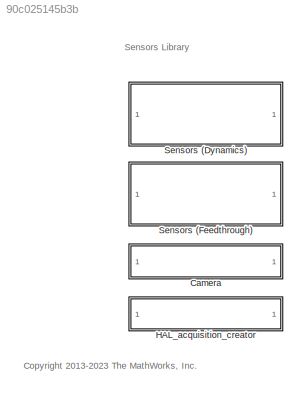
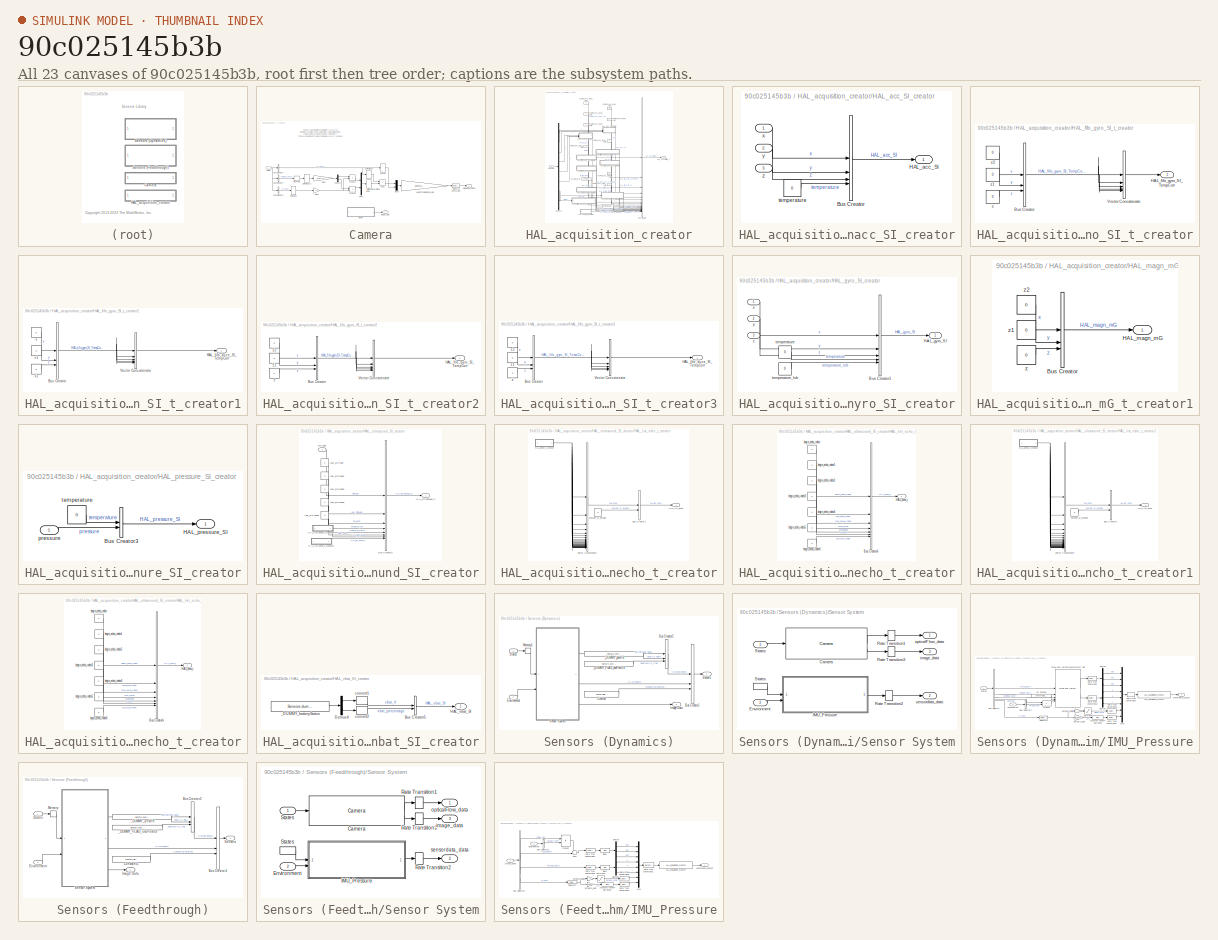
[diagram: thumbnail index - all 23 canvases of the model, root first then tree order]
MODEL slx_90c025145b3b
KIND library
CONFIG AbsTol = auto
CONFIG EnableMultiTasking = on
CONFIG FixedStep = auto
CONFIG MaxStep = auto
CONFIG MinStep = auto
CONFIG RelTol = 1e-3
CONFIG SampleTimeConstraint = Unconstrained
CONFIG SolverName = ode45
CONFIG StartTime = 0.0
CONFIG StopTime = 10.0
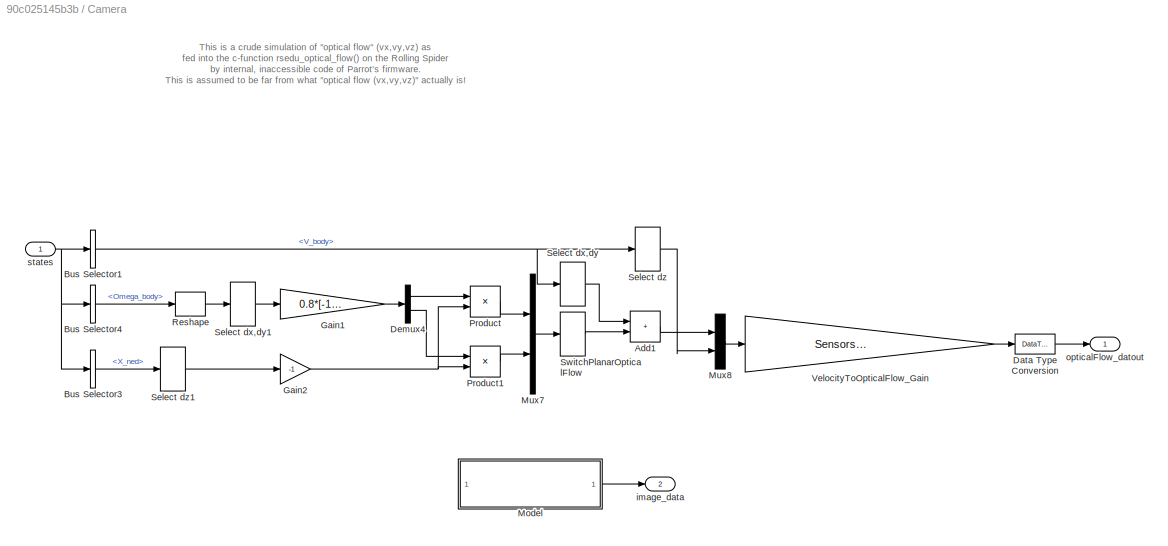
BLOCK [SubSystem] Camera
BLOCK [Sum] Camera/Add1
  IconShape = rectangular
BLOCK [BusSelector] Camera/Bus Selector1
  OutputSignals = V_body
BLOCK [BusSelector] Camera/Bus Selector3
  OutputSignals = X_ned
BLOCK [BusSelector] Camera/Bus Selector4
  OutputSignals = Omega_body
BLOCK [DataTypeConversion] Camera/Data Type Conversion
  OutDataTypeStr = single
  RndMeth = Floor
  SaturateOnIntegerOverflow = off
BLOCK [Demux] Camera/Demux4
  Outputs = 2
BLOCK [Gain] Camera/Gain1
  Gain = 0.8*[-1,1]
BLOCK [Gain] Camera/Gain2
  Gain = -1
BLOCK [ModelReference] Camera/Model
  ModelNameDialog = cameraModel
  ModelReferenceVersion = 9.4
BLOCK [Mux] Camera/Mux7
  DisplayOption = bar
  Inputs = 2
BLOCK [Mux] Camera/Mux8
  DisplayOption = bar
  Inputs = 2
BLOCK [Product] Camera/Product
BLOCK [Product] Camera/Product1
BLOCK [Reshape] Camera/Reshape
BLOCK [Selector] Camera/Select dx,dy
  IndexOptions = Index vector (dialog)
  Indices = [1 2]
  InputPortWidth = 3
  OutputSizes = 1
BLOCK [Selector] Camera/Select dx,dy1
  IndexOptions = Index vector (dialog)
  Indices = [1 2]
  InputPortWidth = 3
  OutputSizes = 1
BLOCK [Selector] Camera/Select dz
  IndexOptions = Index vector (dialog)
  Indices = 3
  InputPortWidth = 3
  OutputSizes = 1
BLOCK [Selector] Camera/Select dz1
  IndexOptions = Index vector (dialog)
  Indices = 3
  InputPortWidth = 3
  OutputSizes = 1
BLOCK [Selector] Camera/SwitchPlanarOpticalFlow
  IndexOptions = Index vector (dialog)
  Indices = [2 1]
  InputPortWidth = 2
  OutputSizes = 1
BLOCK [Gain] Camera/VelocityToOpticalFlow_Gain
  Gain = Sensors.velocityToOpticalFlowGain
BLOCK [Outport] Camera/image_data
  Port = 2
  VectorParamsAs1DForOutWhenUnconnected = off
BLOCK [Outport] Camera/opticalFlow_datout
  VectorParamsAs1DForOutWhenUnconnected = off
BLOCK [Inport] Camera/states
  NameLocation = top
  OutDataTypeStr = Bus: StatesBus
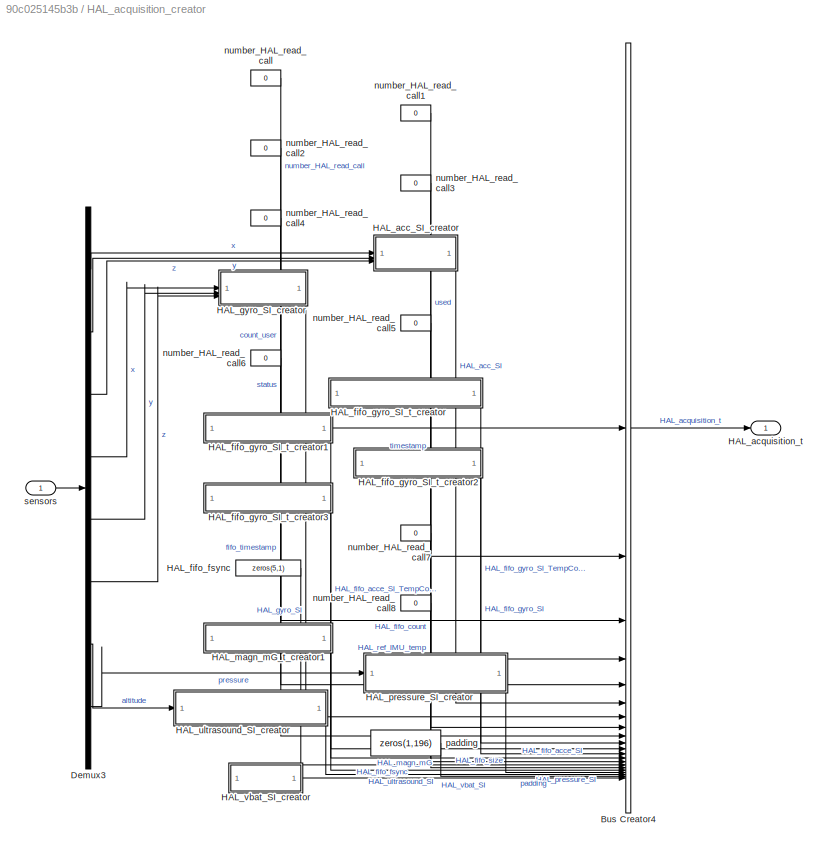
BLOCK [SubSystem] HAL_acquisition_creator
BLOCK [BusCreator] HAL_acquisition_creator/Bus Creator4
  DisplayOption = bar
  InheritFromInputs = off
  Inputs = 21
  NonVirtualBus = on
  OutDataTypeStr = Bus: HAL_acquisition_t
BLOCK [Demux] HAL_acquisition_creator/Demux3
  Outputs = 8
BLOCK [SubSystem] HAL_acquisition_creator/HAL_acc_SI_creator
BLOCK [BusCreator] HAL_acquisition_creator/HAL_acc_SI_creator/Bus Creator
  DisplayOption = bar
  InheritFromInputs = on
  Inputs = 4
  OutDataTypeStr = Bus: HAL_acc_SI_t
BLOCK [Outport] HAL_acquisition_creator/HAL_acc_SI_creator/HAL_acc_SI
  VectorParamsAs1DForOutWhenUnconnected = off
BLOCK [Constant] HAL_acquisition_creator/HAL_acc_SI_creator/temperature
  OutDataTypeStr = single
  Value = 0
BLOCK [Inport] HAL_acquisition_creator/HAL_acc_SI_creator/x
BLOCK [Inport] HAL_acquisition_creator/HAL_acc_SI_creator/y
  Port = 2
BLOCK [Inport] HAL_acquisition_creator/HAL_acc_SI_creator/z
  Port = 3
BLOCK [Outport] HAL_acquisition_creator/HAL_acquisition_t
  OutDataTypeStr = Bus: HAL_acquisition_t
  VectorParamsAs1DForOutWhenUnconnected = off
BLOCK [Constant] HAL_acquisition_creator/HAL_fifo_fsync
  OutDataTypeStr = uint8
  Value = zeros(5,1)
BLOCK [SubSystem] HAL_acquisition_creator/HAL_fifo_gyro_SI_t_creator
BLOCK [BusCreator] HAL_acquisition_creator/HAL_fifo_gyro_SI_t_creator/Bus Creator
  DisplayOption = bar
  InheritFromInputs = off
  Inputs = 3
  NonVirtualBus = on
  OutDataTypeStr = Bus: HAL_fifo_gyro_SI_t
BLOCK [Outport] HAL_acquisition_creator/HAL_fifo_gyro_SI_t_creator/HAL_fifo_gyro_SI_TempCorr
  LockScale = on
  PortDimensions = 5
  VectorParamsAs1DForOutWhenUnconnected = off
BLOCK [Concatenate] HAL_acquisition_creator/HAL_fifo_gyro_SI_t_creator/Vector Concatenate
  NumInputs = 5
BLOCK [Constant] HAL_acquisition_creator/HAL_fifo_gyro_SI_t_creator/z
  OutDataTypeStr = single
  Value = 0
BLOCK [Constant] HAL_acquisition_creator/HAL_fifo_gyro_SI_t_creator/z1
  OutDataTypeStr = single
  Value = 0
BLOCK [Constant] HAL_acquisition_creator/HAL_fifo_gyro_SI_t_creator/z2
  OutDataTypeStr = single
  Value = 0
BLOCK [SubSystem] HAL_acquisition_creator/HAL_fifo_gyro_SI_t_creator1
BLOCK [BusCreator] HAL_acquisition_creator/HAL_fifo_gyro_SI_t_creator1/Bus Creator
  DisplayOption = bar
  InheritFromInputs = off
  Inputs = 3
  NonVirtualBus = on
  OutDataTypeStr = Bus: HAL_fifo_gyro_SI_t
BLOCK [Outport] HAL_acquisition_creator/HAL_fifo_gyro_SI_t_creator1/HAL_fifo_acce_SI_TempCorr
  LockScale = on
  PortDimensions = 5
  VectorParamsAs1DForOutWhenUnconnected = off
BLOCK [Concatenate] HAL_acquisition_creator/HAL_fifo_gyro_SI_t_creator1/Vector Concatenate
  NumInputs = 5
BLOCK [Constant] HAL_acquisition_creator/HAL_fifo_gyro_SI_t_creator1/x
  OutDataTypeStr = single
  Value = 0
BLOCK [Constant] HAL_acquisition_creator/HAL_fifo_gyro_SI_t_creator1/x1
  OutDataTypeStr = single
  Value = 0
BLOCK [Constant] HAL_acquisition_creator/HAL_fifo_gyro_SI_t_creator1/x2
  OutDataTypeStr = single
  Value = 0
BLOCK [SubSystem] HAL_acquisition_creator/HAL_fifo_gyro_SI_t_creator2
BLOCK [BusCreator] HAL_acquisition_creator/HAL_fifo_gyro_SI_t_creator2/Bus Creator
  DisplayOption = bar
  InheritFromInputs = off
  Inputs = 3
  NonVirtualBus = on
  OutDataTypeStr = Bus: HAL_fifo_gyro_SI_t
BLOCK [Outport] HAL_acquisition_creator/HAL_fifo_gyro_SI_t_creator2/HAL_fifo_gyro_SI_TempCorr
  LockScale = on
  PortDimensions = 5
  VectorParamsAs1DForOutWhenUnconnected = off
BLOCK [Concatenate] HAL_acquisition_creator/HAL_fifo_gyro_SI_t_creator2/Vector Concatenate
  NumInputs = 5
BLOCK [Constant] HAL_acquisition_creator/HAL_fifo_gyro_SI_t_creator2/z
  OutDataTypeStr = single
  Value = 0
BLOCK [Constant] HAL_acquisition_creator/HAL_fifo_gyro_SI_t_creator2/z1
  OutDataTypeStr = single
  Value = 0
BLOCK [Constant] HAL_acquisition_creator/HAL_fifo_gyro_SI_t_creator2/z2
  OutDataTypeStr = single
  Value = 0
BLOCK [SubSystem] HAL_acquisition_creator/HAL_fifo_gyro_SI_t_creator3
BLOCK [BusCreator] HAL_acquisition_creator/HAL_fifo_gyro_SI_t_creator3/Bus Creator
  DisplayOption = bar
  InheritFromInputs = off
  Inputs = 3
  NonVirtualBus = on
  OutDataTypeStr = Bus: HAL_fifo_gyro_SI_t
BLOCK [Outport] HAL_acquisition_creator/HAL_fifo_gyro_SI_t_creator3/HAL_fifo_acce_SI_TempCorr
  LockScale = on
  PortDimensions = 5
  VectorParamsAs1DForOutWhenUnconnected = off
BLOCK [Concatenate] HAL_acquisition_creator/HAL_fifo_gyro_SI_t_creator3/Vector Concatenate
  NumInputs = 5
BLOCK [Constant] HAL_acquisition_creator/HAL_fifo_gyro_SI_t_creator3/z
  OutDataTypeStr = single
  Value = 0
BLOCK [Constant] HAL_acquisition_creator/HAL_fifo_gyro_SI_t_creator3/z1
  OutDataTypeStr = single
  Value = 0
BLOCK [Constant] HAL_acquisition_creator/HAL_fifo_gyro_SI_t_creator3/z2
  OutDataTypeStr = single
  Value = 0
BLOCK [SubSystem] HAL_acquisition_creator/HAL_gyro_SI_creator
BLOCK [BusCreator] HAL_acquisition_creator/HAL_gyro_SI_creator/Bus Creator1
  DisplayOption = bar
  InheritFromInputs = on
  Inputs = 5
  OutDataTypeStr = Bus: HAL_gyro_SI_t
BLOCK [Outport] HAL_acquisition_creator/HAL_gyro_SI_creator/HAL_gyro_SI
  VectorParamsAs1DForOutWhenUnconnected = off
BLOCK [Constant] HAL_acquisition_creator/HAL_gyro_SI_creator/temperature
  OutDataTypeStr = single
  Value = 0
BLOCK [Constant] HAL_acquisition_creator/HAL_gyro_SI_creator/temperature_lsb
  OutDataTypeStr = int32
  Value = 0
BLOCK [Inport] HAL_acquisition_creator/HAL_gyro_SI_creator/x
BLOCK [Inport] HAL_acquisition_creator/HAL_gyro_SI_creator/y
  Port = 2
BLOCK [Inport] HAL_acquisition_creator/HAL_gyro_SI_creator/z
  Port = 3
BLOCK [SubSystem] HAL_acquisition_creator/HAL_magn_mG_t_creator1
BLOCK [BusCreator] HAL_acquisition_creator/HAL_magn_mG_t_creator1/Bus Creator
  DisplayOption = bar
  InheritFromInputs = off
  Inputs = 3
  OutDataTypeStr = Bus: HAL_magn_mG_t
BLOCK [Outport] HAL_acquisition_creator/HAL_magn_mG_t_creator1/HAL_magn_mG
  VectorParamsAs1DForOutWhenUnconnected = off
BLOCK [Constant] HAL_acquisition_creator/HAL_magn_mG_t_creator1/z
  OutDataTypeStr = single
  Value = 0
BLOCK [Constant] HAL_acquisition_creator/HAL_magn_mG_t_creator1/z1
  OutDataTypeStr = single
  Value = 0
BLOCK [Constant] HAL_acquisition_creator/HAL_magn_mG_t_creator1/z2
  OutDataTypeStr = single
  Value = 0
BLOCK [SubSystem] HAL_acquisition_creator/HAL_pressure_SI_creator
BLOCK [BusCreator] HAL_acquisition_creator/HAL_pressure_SI_creator/Bus Creator3
  DisplayOption = bar
  InheritFromInputs = on
  Inputs = 2
  OutDataTypeStr = Bus: HAL_pressure_SI_t
BLOCK [Outport] HAL_acquisition_creator/HAL_pressure_SI_creator/HAL_pressure_SI
  VectorParamsAs1DForOutWhenUnconnected = off
BLOCK [Inport] HAL_acquisition_creator/HAL_pressure_SI_creator/pressure
BLOCK [Constant] HAL_acquisition_creator/HAL_pressure_SI_creator/temperature
  NameLocation = top
  OutDataTypeStr = double
  Value = 0
BLOCK [SubSystem] HAL_acquisition_creator/HAL_ultrasound_SI_creator
BLOCK [BusCreator] HAL_acquisition_creator/HAL_ultrasound_SI_creator/Bus Creator2
  DisplayOption = bar
  InheritFromInputs = off
  Inputs = 8
  NonVirtualBus = on
  OutDataTypeStr = Bus: HAL_ultrasound_SI_t
BLOCK [SubSystem] HAL_acquisition_creator/HAL_ultrasound_SI_creator/HAL_list_echo_t_creator
BLOCK [BusCreator] HAL_acquisition_creator/HAL_ultrasound_SI_creator/HAL_list_echo_t_creator/Bus Creator7
  DisplayOption = bar
  InheritFromInputs = on
  Inputs = 2
  NonVirtualBus = on
  OutDataTypeStr = Bus: HAL_list_echo_t
BLOCK [SubSystem] HAL_acquisition_creator/HAL_ultrasound_SI_creator/HAL_list_echo_t_creator/HAL_echo_t_creator
BLOCK [BusCreator] HAL_acquisition_creator/HAL_ultrasound_SI_creator/HAL_list_echo_t_creator/HAL_echo_t_creator/Bus Creator6
  DisplayOption = bar
  InheritFromInputs = on
  Inputs = 7
  NonVirtualBus = on
  OutDataTypeStr = Bus: HAL_echo_t
BLOCK [Outport] HAL_acquisition_creator/HAL_ultrasound_SI_creator/HAL_list_echo_t_creator/HAL_echo_t_creator/HAL_echo_t
  OutDataTypeStr = Bus: HAL_echo_t
  VectorParamsAs1DForOutWhenUnconnected = off
BLOCK [Constant] HAL_acquisition_creator/HAL_ultrasound_SI_creator/HAL_list_echo_t_creator/HAL_echo_t_creator/begin_echo_index
  OutDataTypeStr = uint16
  Value = 0
BLOCK [Constant] HAL_acquisition_creator/HAL_ultrasound_SI_creator/HAL_list_echo_t_creator/HAL_echo_t_creator/begin_echo_index1
  OutDataTypeStr = uint16
  Value = 0
BLOCK [Constant] HAL_acquisition_creator/HAL_ultrasound_SI_creator/HAL_list_echo_t_creator/HAL_echo_t_creator/begin_echo_index2
  OutDataTypeStr = int16
  Value = 0
BLOCK [Constant] HAL_acquisition_creator/HAL_ultrasound_SI_creator/HAL_list_echo_t_creator/HAL_echo_t_creator/begin_echo_index3
  OutDataTypeStr = int32
  Value = 0
BLOCK [Constant] HAL_acquisition_creator/HAL_ultrasound_SI_creator/HAL_list_echo_t_creator/HAL_echo_t_creator/begin_echo_index4
  OutDataTypeStr = uint16
  Value = 0
BLOCK [Constant] HAL_acquisition_creator/HAL_ultrasound_SI_creator/HAL_list_echo_t_creator/HAL_echo_t_creator/begin_echo_index5
  OutDataTypeStr = int16
  Value = 0
BLOCK [Constant] HAL_acquisition_creator/HAL_ultrasound_SI_creator/HAL_list_echo_t_creator/HAL_echo_t_creator/begin_echo_index6
  OutDataTypeStr = uint16
  Value = 0
BLOCK [Outport] HAL_acquisition_creator/HAL_ultrasound_SI_creator/HAL_list_echo_t_creator/HAL_list_echo
  VectorParamsAs1DForOutWhenUnconnected = off
BLOCK [Concatenate] HAL_acquisition_creator/HAL_ultrasound_SI_creator/HAL_list_echo_t_creator/Vector Concatenate
  NumInputs = 30
BLOCK [Constant] HAL_acquisition_creator/HAL_ultrasound_SI_creator/HAL_list_echo_t_creator/number_of_echoes
  OutDataTypeStr = uint8
  Value = 0
BLOCK [SubSystem] HAL_acquisition_creator/HAL_ultrasound_SI_creator/HAL_list_echo_t_creator1
BLOCK [BusCreator] HAL_acquisition_creator/HAL_ultrasound_SI_creator/HAL_list_echo_t_creator1/Bus Creator7
  DisplayOption = bar
  InheritFromInputs = on
  Inputs = 2
  NonVirtualBus = on
  OutDataTypeStr = Bus: HAL_list_echo_t
BLOCK [SubSystem] HAL_acquisition_creator/HAL_ultrasound_SI_creator/HAL_list_echo_t_creator1/HAL_echo_t_creator
BLOCK [BusCreator] HAL_acquisition_creator/HAL_ultrasound_SI_creator/HAL_list_echo_t_creator1/HAL_echo_t_creator/Bus Creator6
  DisplayOption = bar
  InheritFromInputs = on
  Inputs = 7
  NonVirtualBus = on
  OutDataTypeStr = Bus: HAL_echo_t
BLOCK [Outport] HAL_acquisition_creator/HAL_ultrasound_SI_creator/HAL_list_echo_t_creator1/HAL_echo_t_creator/HAL_echo_t
  OutDataTypeStr = Bus: HAL_echo_t
  VectorParamsAs1DForOutWhenUnconnected = off
BLOCK [Constant] HAL_acquisition_creator/HAL_ultrasound_SI_creator/HAL_list_echo_t_creator1/HAL_echo_t_creator/begin_echo_index
  OutDataTypeStr = uint16
  Value = 0
BLOCK [Constant] HAL_acquisition_creator/HAL_ultrasound_SI_creator/HAL_list_echo_t_creator1/HAL_echo_t_creator/begin_echo_index1
  OutDataTypeStr = uint16
  Value = 0
BLOCK [Constant] HAL_acquisition_creator/HAL_ultrasound_SI_creator/HAL_list_echo_t_creator1/HAL_echo_t_creator/begin_echo_index2
  OutDataTypeStr = int16
  Value = 0
BLOCK [Constant] HAL_acquisition_creator/HAL_ultrasound_SI_creator/HAL_list_echo_t_creator1/HAL_echo_t_creator/begin_echo_index3
  OutDataTypeStr = int32
  Value = 0
BLOCK [Constant] HAL_acquisition_creator/HAL_ultrasound_SI_creator/HAL_list_echo_t_creator1/HAL_echo_t_creator/begin_echo_index4
  OutDataTypeStr = uint16
  Value = 0
BLOCK [Constant] HAL_acquisition_creator/HAL_ultrasound_SI_creator/HAL_list_echo_t_creator1/HAL_echo_t_creator/begin_echo_index5
  OutDataTypeStr = int16
  Value = 0
BLOCK [Constant] HAL_acquisition_creator/HAL_ultrasound_SI_creator/HAL_list_echo_t_creator1/HAL_echo_t_creator/begin_echo_index6
  OutDataTypeStr = uint16
  Value = 0
BLOCK [Outport] HAL_acquisition_creator/HAL_ultrasound_SI_creator/HAL_list_echo_t_creator1/HAL_list_echo
  VectorParamsAs1DForOutWhenUnconnected = off
BLOCK [Concatenate] HAL_acquisition_creator/HAL_ultrasound_SI_creator/HAL_list_echo_t_creator1/Vector Concatenate
  NumInputs = 30
BLOCK [Constant] HAL_acquisition_creator/HAL_ultrasound_SI_creator/HAL_list_echo_t_creator1/number_of_echoes
  OutDataTypeStr = uint8
  Value = 0
BLOCK [Outport] HAL_acquisition_creator/HAL_ultrasound_SI_creator/HAL_ultrasound_SI
  VectorParamsAs1DForOutWhenUnconnected = off
BLOCK [Inport] HAL_acquisition_creator/HAL_ultrasound_SI_creator/altitude
BLOCK [Constant] HAL_acquisition_creator/HAL_ultrasound_SI_creator/raw_altitude
  OutDataTypeStr = single
  Value = 0
BLOCK [Constant] HAL_acquisition_creator/HAL_ultrasound_SI_creator/raw_altitude1
  OutDataTypeStr = uint16
  Value = 0
BLOCK [Constant] HAL_acquisition_creator/HAL_ultrasound_SI_creator/raw_altitude2
  OutDataTypeStr = int32
  Value = 0
BLOCK [Constant] HAL_acquisition_creator/HAL_ultrasound_SI_creator/raw_altitude3
  OutDataTypeStr = int32
  Value = 0
BLOCK [Constant] HAL_acquisition_creator/HAL_ultrasound_SI_creator/raw_altitude4
  OutDataTypeStr = uint8
  Value = 0
BLOCK [SubSystem] HAL_acquisition_creator/HAL_vbat_SI_creator
BLOCK [BusCreator] HAL_acquisition_creator/HAL_vbat_SI_creator/Bus Creator5
  DisplayOption = bar
  InheritFromInputs = on
  Inputs = 2
  OutDataTypeStr = Bus: HAL_vbat_SI_t
BLOCK [Demux] HAL_acquisition_creator/HAL_vbat_SI_creator/Demux4
  Outputs = 2
BLOCK [Outport] HAL_acquisition_creator/HAL_vbat_SI_creator/HAL_vbat_SI
  VectorParamsAs1DForOutWhenUnconnected = off
BLOCK [Constant] HAL_acquisition_creator/HAL_vbat_SI_creator/_DUMMY_batteryStatus
  NameLocation = top
  Value = Sensors.dummy.batteryStatus
BLOCK [DataTypeConversion] HAL_acquisition_creator/HAL_vbat_SI_creator/convert1
  OutDataTypeStr = single
  RndMeth = Floor
BLOCK [DataTypeConversion] HAL_acquisition_creator/HAL_vbat_SI_creator/convert2
  OutDataTypeStr = uint32
  RndMeth = Floor
BLOCK [Constant] HAL_acquisition_creator/number_HAL_read_call
  OutDataTypeStr = int32
  Value = 0
BLOCK [Constant] HAL_acquisition_creator/number_HAL_read_call1
  OutDataTypeStr = uint32
  Value = 0
BLOCK [Constant] HAL_acquisition_creator/number_HAL_read_call2
  OutDataTypeStr = uint16
  Value = 0
BLOCK [Constant] HAL_acquisition_creator/number_HAL_read_call3
  OutDataTypeStr = uint8
  Value = 0
BLOCK [Constant] HAL_acquisition_creator/number_HAL_read_call4
  OutDataTypeStr = uint8
  Value = 0
BLOCK [Constant] HAL_acquisition_creator/number_HAL_read_call5
  OutDataTypeStr = uint16
  Value = 0
BLOCK [Constant] HAL_acquisition_creator/number_HAL_read_call6
  OutDataTypeStr = uint32
  Value = 0
BLOCK [Constant] HAL_acquisition_creator/number_HAL_read_call7
  OutDataTypeStr = single
  Value = 0
BLOCK [Constant] HAL_acquisition_creator/number_HAL_read_call8
  OutDataTypeStr = int32
  Value = 0
BLOCK [Constant] HAL_acquisition_creator/padding
  OutDataTypeStr = uint8
  Value = zeros(1,196)
BLOCK [Inport] HAL_acquisition_creator/sensors
BLOCK [SubSystem] Sensors (Dynamics)
  TreatAsAtomicUnit = on
  VariantControl = Variants.Sensors==1
BLOCK [BusCreator] Sensors (Dynamics)/Bus Creator1
  DisplayOption = bar
  InheritFromInputs = on
  Inputs = 3
  NonVirtualBus = on
  OutDataTypeStr = Bus: SensorsBus
BLOCK [BusCreator] Sensors (Dynamics)/Bus Creator2
  DisplayOption = bar
  InheritFromInputs = on
  Inputs = 3
  NonVirtualBus = on
  OutDataTypeStr = Bus: extraSensorData_t
BLOCK [Constant] Sensors (Dynamics)/Constant
  OutDataTypeStr = single
  Value = sensorCalibrationData
BLOCK [Inport] Sensors (Dynamics)/Environment
  OutDataTypeStr = Bus: EnvironmentBus
  Port = 2
BLOCK [Outport] Sensors (Dynamics)/Image Data
  OutDataTypeStr = uint8
  Port = 2
  PortDimensions = [4 9600]
  VectorParamsAs1DForOutWhenUnconnected = off
BLOCK [Memory] Sensors (Dynamics)/Memory1
  InheritSampleTime = on
  InitialCondition = States
BLOCK [SubSystem] Sensors (Dynamics)/Sensor System
BLOCK [Reference] Sensors (Dynamics)/Sensor System/Camera  REF=$bdroot/Camera
  SourceBlock = $bdroot/Camera
BLOCK [Inport] Sensors (Dynamics)/Sensor System/Environment
  Port = 2
BLOCK [SubSystem] Sensors (Dynamics)/Sensor System/IMU_Pressure
BLOCK [Bias] Sensors (Dynamics)/Sensor System/IMU_Pressure/Assumes takeoff was level1
  Bias = Sensors.altToPrsBias
  SaturateOnIntegerOverflow = off
BLOCK [BusSelector] Sensors (Dynamics)/Sensor System/IMU_Pressure/Bus Selector
  OutputSignals = Accel_body,Omega_body,dOmega_body,DCM_be,X_ned
BLOCK [BusSelector] Sensors (Dynamics)/Sensor System/IMU_Pressure/Bus Selector1
  OutputSignals = Gravity_ned
BLOCK [Constant] Sensors (Dynamics)/Sensor System/IMU_Pressure/CG location
  NameLocation = top
  Value = Sensors.IMU.cg
BLOCK [DataTypeConversion] Sensors (Dynamics)/Sensor System/IMU_Pressure/Data Type Conversion
  OutDataTypeStr = single
  RndMeth = Floor
  SaturateOnIntegerOverflow = off
BLOCK [DataTypeConversion] Sensors (Dynamics)/Sensor System/IMU_Pressure/Data Type Conversion1
  OutDataTypeStr = single
  RndMeth = Floor
  SaturateOnIntegerOverflow = off
BLOCK [DataTypeConversion] Sensors (Dynamics)/Sensor System/IMU_Pressure/Data Type Conversion2
  OutDataTypeStr = single
  RndMeth = Floor
  SaturateOnIntegerOverflow = off
BLOCK [DataTypeConversion] Sensors (Dynamics)/Sensor System/IMU_Pressure/Data Type Conversion3
  OutDataTypeStr = single
  RndMeth = Floor
  SaturateOnIntegerOverflow = off
BLOCK [DataTypeConversion] Sensors (Dynamics)/Sensor System/IMU_Pressure/Data Type Conversion4
  OutDataTypeStr = single
  RndMeth = Floor
  SaturateOnIntegerOverflow = off
BLOCK [Demux] Sensors (Dynamics)/Sensor System/IMU_Pressure/Demux
  Outputs = 3
BLOCK [Demux] Sensors (Dynamics)/Sensor System/IMU_Pressure/Demux2
  Outputs = 3
BLOCK [Inport] Sensors (Dynamics)/Sensor System/IMU_Pressure/Environment
  Port = 2
BLOCK [Reference] Sensors (Dynamics)/Sensor System/IMU_Pressure/HAL_acquisition_creator  REF=$bdroot/HAL_acquisition_creator
  SourceBlock = $bdroot/HAL_acquisition_creator
  SourceType = SubSystem
BLOCK [Mux] Sensors (Dynamics)/Sensor System/IMU_Pressure/Mux
  DisplayOption = bar
  Inputs = 8
BLOCK [Product] Sensors (Dynamics)/Sensor System/IMU_Pressure/Product
  Multiplication = Matrix(*)
BLOCK [Saturate] Sensors (Dynamics)/Sensor System/IMU_Pressure/Saturation
  LowerLimit = Sensors.altSensorMin
  OutDataTypeStr = single
  UpperLimit = inf
BLOCK [Selector] Sensors (Dynamics)/Sensor System/IMU_Pressure/Selector2
  IndexOptions = Index vector (dialog)
  Indices = [3]
  InputPortWidth = 3
  OutputSizes = 1
BLOCK [Inport] Sensors (Dynamics)/Sensor System/IMU_Pressure/States
BLOCK [Reference] Sensors (Dynamics)/Sensor System/IMU_Pressure/Three-axis Inertial Measurement Unit  REF=aerolibnav/Three-axis Inertial
Measurement Unit
  NameLocation = top
  SourceBlock = aerolibnav/Three-axis Inertial\nMeasurement Unit
  SourceType = Three-axis Inertial Measurement Unit
BLOCK [Gain] Sensors (Dynamics)/Sensor System/IMU_Pressure/altToprs_gain
  Gain = Sensors.altToPrsGain
  OutDataTypeStr = single
  ParamDataTypeStr = single
BLOCK [Gain] Sensors (Dynamics)/Sensor System/IMU_Pressure/altToprs_gain1
  Gain = -1
  OutDataTypeStr = single
  ParamDataTypeStr = single
BLOCK [Outport] Sensors (Dynamics)/Sensor System/IMU_Pressure/sensordata_datout
  OutDataTypeStr = Bus: HAL_acquisition_t
  VectorParamsAs1DForOutWhenUnconnected = off
BLOCK [RateTransition] Sensors (Dynamics)/Sensor System/Rate Transition1
  OutPortSampleTime = Ts
BLOCK [RateTransition] Sensors (Dynamics)/Sensor System/Rate Transition2
  OutPortSampleTime = Ts
BLOCK [RateTransition] Sensors (Dynamics)/Sensor System/Rate Transition3
  InitialCondition = zeros(4,9600)
  OutPortSampleTime = VTs
BLOCK [Inport] Sensors (Dynamics)/Sensor System/States
BLOCK [InportShadow] Sensors (Dynamics)/Sensor System/States 
BLOCK [Outport] Sensors (Dynamics)/Sensor System/image_data
  Port = 3
  VectorParamsAs1DForOutWhenUnconnected = off
BLOCK [Outport] Sensors (Dynamics)/Sensor System/opticalFlow_data
  VectorParamsAs1DForOutWhenUnconnected = off
BLOCK [Outport] Sensors (Dynamics)/Sensor System/sensordata_data
  OutDataTypeStr = Bus: HAL_acquisition_t
  Port = 2
  VectorParamsAs1DForOutWhenUnconnected = off
BLOCK [Outport] Sensors (Dynamics)/Sensors
  OutDataTypeStr = Bus: SensorsBus
  VectorParamsAs1DForOutWhenUnconnected = off
BLOCK [Inport] Sensors (Dynamics)/States
  OutDataTypeStr = Bus: StatesBus
BLOCK [Constant] Sensors (Dynamics)/_DUMMY_FLAG_usePosVIS
  OutDataTypeStr = single
  SampleTime = Ts
  Value = Sensors.dummy.usePosVISFlag
BLOCK [Constant] Sensors (Dynamics)/_DUMMY_posVIS
  OutDataTypeStr = single
  SampleTime = Ts
  Value = Sensors.dummy.posVISNoVisionAvail
BLOCK [SubSystem] Sensors (Feedthrough)
  TreatAsAtomicUnit = on
BLOCK [BusCreator] Sensors (Feedthrough)/Bus Creator1
  DisplayOption = bar
  InheritFromInputs = on
  Inputs = 3
  NonVirtualBus = on
  OutDataTypeStr = Bus: SensorsBus
BLOCK [BusCreator] Sensors (Feedthrough)/Bus Creator2
  DisplayOption = bar
  InheritFromInputs = on
  Inputs = 3
  NonVirtualBus = on
  OutDataTypeStr = Bus: extraSensorData_t
BLOCK [Constant] Sensors (Feedthrough)/Constant1
  OutDataTypeStr = single
  Value = sensorCalibrationData
BLOCK [Inport] Sensors (Feedthrough)/Environment
  OutDataTypeStr = Bus: EnvironmentBus
  Port = 2
BLOCK [Outport] Sensors (Feedthrough)/Image Data
  OutDataTypeStr = uint8
  Port = 2
  PortDimensions = [4 9600]
  VectorParamsAs1DForOutWhenUnconnected = off
BLOCK [Memory] Sensors (Feedthrough)/Memory
  InheritSampleTime = on
  InitialCondition = States
BLOCK [SubSystem] Sensors (Feedthrough)/Sensor System
BLOCK [Reference] Sensors (Feedthrough)/Sensor System/Camera  REF=$bdroot/Camera
  SourceBlock = $bdroot/Camera
BLOCK [Inport] Sensors (Feedthrough)/Sensor System/Environment
  Port = 2
BLOCK [SubSystem] Sensors (Feedthrough)/Sensor System/IMU_Pressure
BLOCK [Bias] Sensors (Feedthrough)/Sensor System/IMU_Pressure/Assumes takeoff was level1
  Bias = Sensors.altToPrsBias
  SaturateOnIntegerOverflow = off
BLOCK [Bias] Sensors (Feedthrough)/Sensor System/IMU_Pressure/Bias1
  Bias = Sensors.IMU.accBias'
  SaturateOnIntegerOverflow = off
BLOCK [Bias] Sensors (Feedthrough)/Sensor System/IMU_Pressure/Bias2
  Bias = Sensors.IMU.gyroBias'
  SaturateOnIntegerOverflow = off
BLOCK [BusSelector] Sensors (Feedthrough)/Sensor System/IMU_Pressure/Bus Selector1
  OutputSignals = DCM_be,Accel_body,Omega_body,X_ned
BLOCK [BusSelector] Sensors (Feedthrough)/Sensor System/IMU_Pressure/Bus Selector2
  OutputSignals = Gravity_ned
BLOCK [DataTypeConversion] Sensors (Feedthrough)/Sensor System/IMU_Pressure/Data Type Conversion1
  OutDataTypeStr = single
  RndMeth = Floor
  SaturateOnIntegerOverflow = off
BLOCK [DataTypeConversion] Sensors (Feedthrough)/Sensor System/IMU_Pressure/Data Type Conversion2
  OutDataTypeStr = single
  RndMeth = Floor
  SaturateOnIntegerOverflow = off
BLOCK [DataTypeConversion] Sensors (Feedthrough)/Sensor System/IMU_Pressure/Data Type Conversion3
  OutDataTypeStr = single
  RndMeth = Floor
  SaturateOnIntegerOverflow = off
BLOCK [DataTypeConversion] Sensors (Feedthrough)/Sensor System/IMU_Pressure/Data Type Conversion4
  OutDataTypeStr = single
  RndMeth = Floor
  SaturateOnIntegerOverflow = off
BLOCK [DataTypeConversion] Sensors (Feedthrough)/Sensor System/IMU_Pressure/Data Type Conversion5
  OutDataTypeStr = single
  RndMeth = Floor
  SaturateOnIntegerOverflow = off
BLOCK [Demux] Sensors (Feedthrough)/Sensor System/IMU_Pressure/Demux
  Outputs = 3
BLOCK [Demux] Sensors (Feedthrough)/Sensor System/IMU_Pressure/Demux2
  Outputs = 3
BLOCK [Inport] Sensors (Feedthrough)/Sensor System/IMU_Pressure/Environment
  Port = 2
BLOCK [Reference] Sensors (Feedthrough)/Sensor System/IMU_Pressure/HAL_acquisition_creator  REF=$bdroot/HAL_acquisition_creator
  SourceBlock = $bdroot/HAL_acquisition_creator
  SourceType = SubSystem
BLOCK [Mux] Sensors (Feedthrough)/Sensor System/IMU_Pressure/Mux
  DisplayOption = bar
  Inputs = 8
BLOCK [Product] Sensors (Feedthrough)/Sensor System/IMU_Pressure/Product
  Multiplication = Matrix(*)
BLOCK [Saturate] Sensors (Feedthrough)/Sensor System/IMU_Pressure/Saturation
  LowerLimit = Sensors.altSensorMin
  OutDataTypeStr = single
  UpperLimit = inf
BLOCK [Selector] Sensors (Feedthrough)/Sensor System/IMU_Pressure/Selector2
  IndexOptions = Index vector (dialog)
  Indices = [3]
  InputPortWidth = 3
  OutputSizes = 1
BLOCK [Sum] Sensors (Feedthrough)/Sensor System/IMU_Pressure/Sum
  Inputs = -+|
BLOCK [Gain] Sensors (Feedthrough)/Sensor System/IMU_Pressure/altToprs_gain
  Gain = Sensors.altToPrsGain
  OutDataTypeStr = single
  ParamDataTypeStr = single
BLOCK [Gain] Sensors (Feedthrough)/Sensor System/IMU_Pressure/altToprs_gain1
  Gain = -1
  OutDataTypeStr = single
  ParamDataTypeStr = single
BLOCK [Outport] Sensors (Feedthrough)/Sensor System/IMU_Pressure/sensordata_datout
  OutDataTypeStr = Bus: HAL_acquisition_t
  VectorParamsAs1DForOutWhenUnconnected = off
BLOCK [Inport] Sensors (Feedthrough)/Sensor System/IMU_Pressure/states_datin
  OutDataTypeStr = Bus: StatesBus
BLOCK [RateTransition] Sensors (Feedthrough)/Sensor System/Rate Transition1
  OutPortSampleTime = Ts
BLOCK [RateTransition] Sensors (Feedthrough)/Sensor System/Rate Transition2
  OutPortSampleTime = Ts
BLOCK [RateTransition] Sensors (Feedthrough)/Sensor System/Rate Transition3
  InitialCondition = zeros(4,9600)
  OutPortSampleTime = VTs
BLOCK [Inport] Sensors (Feedthrough)/Sensor System/States
BLOCK [InportShadow] Sensors (Feedthrough)/Sensor System/States 
BLOCK [Outport] Sensors (Feedthrough)/Sensor System/image_data
  Port = 3
  VectorParamsAs1DForOutWhenUnconnected = off
BLOCK [Outport] Sensors (Feedthrough)/Sensor System/opticalFlow_data
  VectorParamsAs1DForOutWhenUnconnected = off
BLOCK [Outport] Sensors (Feedthrough)/Sensor System/sensordata_data
  OutDataTypeStr = Bus: HAL_acquisition_t
  Port = 2
  VectorParamsAs1DForOutWhenUnconnected = off
BLOCK [Outport] Sensors (Feedthrough)/Sensors
  OutDataTypeStr = Bus: SensorsBus
  VectorParamsAs1DForOutWhenUnconnected = off
BLOCK [Inport] Sensors (Feedthrough)/States
  OutDataTypeStr = Bus: StatesBus
BLOCK [Constant] Sensors (Feedthrough)/_DUMMY_FLAG_usePosVIS
  OutDataTypeStr = single
  Value = Sensors.dummy.usePosVISFlag
BLOCK [Constant] Sensors (Feedthrough)/_DUMMY_posVIS
  OutDataTypeStr = single
  Value = Sensors.dummy.posVISNoVisionAvail
ANNOTATION (root): <copyright redacted>
ANNOTATION (root): Sensors Library
ANNOTATION Camera: This is a crude simulation of "optical flow" (vx,vy,vz) as fed into the c-function rsedu_optical_flow() on the Rolling Spider by internal, inaccessible code of Parrot's firmware. This is assumed to be far from what "optical flow (vx,vy,vz)" actually is!
LINE HAL_acquisition_creator/Bus Creator4:1 -> HAL_acquisition_creator/HAL_acquisition_t:1
LINE HAL_acquisition_creator/Demux3:1 -> HAL_acquisition_creator/HAL_acc_SI_creator:1
LINE HAL_acquisition_creator/Demux3:2 -> HAL_acquisition_creator/HAL_acc_SI_creator:2
LINE HAL_acquisition_creator/Demux3:3 -> HAL_acquisition_creator/HAL_acc_SI_creator:3
LINE HAL_acquisition_creator/Demux3:4 -> HAL_acquisition_creator/HAL_gyro_SI_creator:1
LINE HAL_acquisition_creator/Demux3:5 -> HAL_acquisition_creator/HAL_gyro_SI_creator:2
LINE HAL_acquisition_creator/Demux3:6 -> HAL_acquisition_creator/HAL_gyro_SI_creator:3
LINE HAL_acquisition_creator/Demux3:7 -> HAL_acquisition_creator/HAL_ultrasound_SI_creator:1
LINE HAL_acquisition_creator/Demux3:8 -> HAL_acquisition_creator/HAL_pressure_SI_creator:1
LINE HAL_acquisition_creator/HAL_acc_SI_creator/Bus Creator:1 -> HAL_acquisition_creator/HAL_acc_SI_creator/HAL_acc_SI:1
LINE HAL_acquisition_creator/HAL_acc_SI_creator/temperature:1 -> HAL_acquisition_creator/HAL_acc_SI_creator/Bus Creator:4
LINE HAL_acquisition_creator/HAL_acc_SI_creator/x:1 -> HAL_acquisition_creator/HAL_acc_SI_creator/Bus Creator:1
LINE HAL_acquisition_creator/HAL_acc_SI_creator/y:1 -> HAL_acquisition_creator/HAL_acc_SI_creator/Bus Creator:2
LINE HAL_acquisition_creator/HAL_acc_SI_creator/z:1 -> HAL_acquisition_creator/HAL_acc_SI_creator/Bus Creator:3
LINE HAL_acquisition_creator/HAL_acc_SI_creator:1 -> HAL_acquisition_creator/Bus Creator4:6
LINE HAL_acquisition_creator/HAL_fifo_fsync:1 -> HAL_acquisition_creator/Bus Creator4:15
NET HAL_acquisition_creator/HAL_fifo_gyro_SI_t_creator/Bus Creator:1 -> HAL_acquisition_creator/HAL_fifo_gyro_SI_t_creator/Vector Concatenate:1, HAL_acquisition_creator/HAL_fifo_gyro_SI_t_creator/Vector Concatenate:2, HAL_acquisition_creator/HAL_fifo_gyro_SI_t_creator/Vector Concatenate:3, HAL_acquisition_creator/HAL_fifo_gyro_SI_t_creator/Vector Concatenate:4, HAL_acquisition_creator/HAL_fifo_gyro_SI_t_creator/Vector Concatenate:5
LINE HAL_acquisition_creator/HAL_fifo_gyro_SI_t_creator/Vector Concatenate:1 -> HAL_acquisition_creator/HAL_fifo_gyro_SI_t_creator/HAL_fifo_gyro_SI_TempCorr:1
LINE HAL_acquisition_creator/HAL_fifo_gyro_SI_t_creator/z1:1 -> HAL_acquisition_creator/HAL_fifo_gyro_SI_t_creator/Bus Creator:2
LINE HAL_acquisition_creator/HAL_fifo_gyro_SI_t_creator/z2:1 -> HAL_acquisition_creator/HAL_fifo_gyro_SI_t_creator/Bus Creator:1
LINE HAL_acquisition_creator/HAL_fifo_gyro_SI_t_creator/z:1 -> HAL_acquisition_creator/HAL_fifo_gyro_SI_t_creator/Bus Creator:3
NET HAL_acquisition_creator/HAL_fifo_gyro_SI_t_creator1/Bus Creator:1 -> HAL_acquisition_creator/HAL_fifo_gyro_SI_t_creator1/Vector Concatenate:1, HAL_acquisition_creator/HAL_fifo_gyro_SI_t_creator1/Vector Concatenate:2, HAL_acquisition_creator/HAL_fifo_gyro_SI_t_creator1/Vector Concatenate:3, HAL_acquisition_creator/HAL_fifo_gyro_SI_t_creator1/Vector Concatenate:4, HAL_acquisition_creator/HAL_fifo_gyro_SI_t_creator1/Vector Concatenate:5
LINE HAL_acquisition_creator/HAL_fifo_gyro_SI_t_creator1/Vector Concatenate:1 -> HAL_acquisition_creator/HAL_fifo_gyro_SI_t_creator1/HAL_fifo_acce_SI_TempCorr:1
LINE HAL_acquisition_creator/HAL_fifo_gyro_SI_t_creator1/x1:1 -> HAL_acquisition_creator/HAL_fifo_gyro_SI_t_creator1/Bus Creator:2
LINE HAL_acquisition_creator/HAL_fifo_gyro_SI_t_creator1/x2:1 -> HAL_acquisition_creator/HAL_fifo_gyro_SI_t_creator1/Bus Creator:3
LINE HAL_acquisition_creator/HAL_fifo_gyro_SI_t_creator1/x:1 -> HAL_acquisition_creator/HAL_fifo_gyro_SI_t_creator1/Bus Creator:1
LINE HAL_acquisition_creator/HAL_fifo_gyro_SI_t_creator1:1 -> HAL_acquisition_creator/Bus Creator4:11
NET HAL_acquisition_creator/HAL_fifo_gyro_SI_t_creator2/Bus Creator:1 -> HAL_acquisition_creator/HAL_fifo_gyro_SI_t_creator2/Vector Concatenate:1, HAL_acquisition_creator/HAL_fifo_gyro_SI_t_creator2/Vector Concatenate:2, HAL_acquisition_creator/HAL_fifo_gyro_SI_t_creator2/Vector Concatenate:3, HAL_acquisition_creator/HAL_fifo_gyro_SI_t_creator2/Vector Concatenate:4, HAL_acquisition_creator/HAL_fifo_gyro_SI_t_creator2/Vector Concatenate:5
LINE HAL_acquisition_creator/HAL_fifo_gyro_SI_t_creator2/Vector Concatenate:1 -> HAL_acquisition_creator/HAL_fifo_gyro_SI_t_creator2/HAL_fifo_gyro_SI_TempCorr:1
LINE HAL_acquisition_creator/HAL_fifo_gyro_SI_t_creator2/z1:1 -> HAL_acquisition_creator/HAL_fifo_gyro_SI_t_creator2/Bus Creator:2
LINE HAL_acquisition_creator/HAL_fifo_gyro_SI_t_creator2/z2:1 -> HAL_acquisition_creator/HAL_fifo_gyro_SI_t_creator2/Bus Creator:1
LINE HAL_acquisition_creator/HAL_fifo_gyro_SI_t_creator2/z:1 -> HAL_acquisition_creator/HAL_fifo_gyro_SI_t_creator2/Bus Creator:3
LINE HAL_acquisition_creator/HAL_fifo_gyro_SI_t_creator2:1 -> HAL_acquisition_creator/Bus Creator4:12
NET HAL_acquisition_creator/HAL_fifo_gyro_SI_t_creator3/Bus Creator:1 -> HAL_acquisition_creator/HAL_fifo_gyro_SI_t_creator3/Vector Concatenate:1, HAL_acquisition_creator/HAL_fifo_gyro_SI_t_creator3/Vector Concatenate:2, HAL_acquisition_creator/HAL_fifo_gyro_SI_t_creator3/Vector Concatenate:3, HAL_acquisition_creator/HAL_fifo_gyro_SI_t_creator3/Vector Concatenate:4, HAL_acquisition_creator/HAL_fifo_gyro_SI_t_creator3/Vector Concatenate:5
LINE HAL_acquisition_creator/HAL_fifo_gyro_SI_t_creator3/Vector Concatenate:1 -> HAL_acquisition_creator/HAL_fifo_gyro_SI_t_creator3/HAL_fifo_acce_SI_TempCorr:1
LINE HAL_acquisition_creator/HAL_fifo_gyro_SI_t_creator3/z1:1 -> HAL_acquisition_creator/HAL_fifo_gyro_SI_t_creator3/Bus Creator:2
LINE HAL_acquisition_creator/HAL_fifo_gyro_SI_t_creator3/z2:1 -> HAL_acquisition_creator/HAL_fifo_gyro_SI_t_creator3/Bus Creator:1
LINE HAL_acquisition_creator/HAL_fifo_gyro_SI_t_creator3/z:1 -> HAL_acquisition_creator/HAL_fifo_gyro_SI_t_creator3/Bus Creator:3
LINE HAL_acquisition_creator/HAL_fifo_gyro_SI_t_creator3:1 -> HAL_acquisition_creator/Bus Creator4:13
LINE HAL_acquisition_creator/HAL_fifo_gyro_SI_t_creator:1 -> HAL_acquisition_creator/Bus Creator4:10
LINE HAL_acquisition_creator/HAL_gyro_SI_creator/Bus Creator1:1 -> HAL_acquisition_creator/HAL_gyro_SI_creator/HAL_gyro_SI:1
LINE HAL_acquisition_creator/HAL_gyro_SI_creator/temperature:1 -> HAL_acquisition_creator/HAL_gyro_SI_creator/Bus Creator1:4
LINE HAL_acquisition_creator/HAL_gyro_SI_creator/temperature_lsb:1 -> HAL_acquisition_creator/HAL_gyro_SI_creator/Bus Creator1:5
LINE HAL_acquisition_creator/HAL_gyro_SI_creator/x:1 -> HAL_acquisition_creator/HAL_gyro_SI_creator/Bus Creator1:1
LINE HAL_acquisition_creator/HAL_gyro_SI_creator/y:1 -> HAL_acquisition_creator/HAL_gyro_SI_creator/Bus Creator1:2
LINE HAL_acquisition_creator/HAL_gyro_SI_creator/z:1 -> HAL_acquisition_creator/HAL_gyro_SI_creator/Bus Creator1:3
LINE HAL_acquisition_creator/HAL_gyro_SI_creator:1 -> HAL_acquisition_creator/Bus Creator4:7
LINE HAL_acquisition_creator/HAL_magn_mG_t_creator1/Bus Creator:1 -> HAL_acquisition_creator/HAL_magn_mG_t_creator1/HAL_magn_mG:1
LINE HAL_acquisition_creator/HAL_magn_mG_t_creator1/z1:1 -> HAL_acquisition_creator/HAL_magn_mG_t_creator1/Bus Creator:2
LINE HAL_acquisition_creator/HAL_magn_mG_t_creator1/z2:1 -> HAL_acquisition_creator/HAL_magn_mG_t_creator1/Bus Creator:1
LINE HAL_acquisition_creator/HAL_magn_mG_t_creator1/z:1 -> HAL_acquisition_creator/HAL_magn_mG_t_creator1/Bus Creator:3
LINE HAL_acquisition_creator/HAL_magn_mG_t_creator1:1 -> HAL_acquisition_creator/Bus Creator4:17
LINE HAL_acquisition_creator/HAL_pressure_SI_creator/Bus Creator3:1 -> HAL_acquisition_creator/HAL_pressure_SI_creator/HAL_pressure_SI:1
LINE HAL_acquisition_creator/HAL_pressure_SI_creator/pressure:1 -> HAL_acquisition_creator/HAL_pressure_SI_creator/Bus Creator3:2
LINE HAL_acquisition_creator/HAL_pressure_SI_creator/temperature:1 -> HAL_acquisition_creator/HAL_pressure_SI_creator/Bus Creator3:1
LINE HAL_acquisition_creator/HAL_pressure_SI_creator:1 -> HAL_acquisition_creator/Bus Creator4:18
LINE HAL_acquisition_creator/HAL_ultrasound_SI_creator/Bus Creator2:1 -> HAL_acquisition_creator/HAL_ultrasound_SI_creator/HAL_ultrasound_SI:1
LINE HAL_acquisition_creator/HAL_ultrasound_SI_creator/HAL_list_echo_t_creator/Bus Creator7:1 -> HAL_acquisition_creator/HAL_ultrasound_SI_creator/HAL_list_echo_t_creator/HAL_list_echo:1
LINE HAL_acquisition_creator/HAL_ultrasound_SI_creator/HAL_list_echo_t_creator/HAL_echo_t_creator/Bus Creator6:1 -> HAL_acquisition_creator/HAL_ultrasound_SI_creator/HAL_list_echo_t_creator/HAL_echo_t_creator/HAL_echo_t:1
LINE HAL_acquisition_creator/HAL_ultrasound_SI_creator/HAL_list_echo_t_creator/HAL_echo_t_creator/begin_echo_index1:1 -> HAL_acquisition_creator/HAL_ultrasound_SI_creator/HAL_list_echo_t_creator/HAL_echo_t_creator/Bus Creator6:2
LINE HAL_acquisition_creator/HAL_ultrasound_SI_creator/HAL_list_echo_t_creator/HAL_echo_t_creator/begin_echo_index2:1 -> HAL_acquisition_creator/HAL_ultrasound_SI_creator/HAL_list_echo_t_creator/HAL_echo_t_creator/Bus Creator6:3
LINE HAL_acquisition_creator/HAL_ultrasound_SI_creator/HAL_list_echo_t_creator/HAL_echo_t_creator/begin_echo_index3:1 -> HAL_acquisition_creator/HAL_ultrasound_SI_creator/HAL_list_echo_t_creator/HAL_echo_t_creator/Bus Creator6:4
LINE HAL_acquisition_creator/HAL_ultrasound_SI_creator/HAL_list_echo_t_creator/HAL_echo_t_creator/begin_echo_index4:1 -> HAL_acquisition_creator/HAL_ultrasound_SI_creator/HAL_list_echo_t_creator/HAL_echo_t_creator/Bus Creator6:5
LINE HAL_acquisition_creator/HAL_ultrasound_SI_creator/HAL_list_echo_t_creator/HAL_echo_t_creator/begin_echo_index5:1 -> HAL_acquisition_creator/HAL_ultrasound_SI_creator/HAL_list_echo_t_creator/HAL_echo_t_creator/Bus Creator6:6
LINE HAL_acquisition_creator/HAL_ultrasound_SI_creator/HAL_list_echo_t_creator/HAL_echo_t_creator/begin_echo_index6:1 -> HAL_acquisition_creator/HAL_ultrasound_SI_creator/HAL_list_echo_t_creator/HAL_echo_t_creator/Bus Creator6:7
LINE HAL_acquisition_creator/HAL_ultrasound_SI_creator/HAL_list_echo_t_creator/HAL_echo_t_creator/begin_echo_index:1 -> HAL_acquisition_creator/HAL_ultrasound_SI_creator/HAL_list_echo_t_creator/HAL_echo_t_creator/Bus Creator6:1
NET HAL_acquisition_creator/HAL_ultrasound_SI_creator/HAL_list_echo_t_creator/HAL_echo_t_creator:1 -> HAL_acquisition_creator/HAL_ultrasound_SI_creator/HAL_list_echo_t_creator/Vector Concatenate:1, HAL_acquisition_creator/HAL_ultrasound_SI_creator/HAL_list_echo_t_creator/Vector Concatenate:10, HAL_acquisition_creator/HAL_ultrasound_SI_creator/HAL_list_echo_t_creator/Vector Concatenate:11, HAL_acquisition_creator/HAL_ultrasound_SI_creator/HAL_list_echo_t_creator/Vector Concatenate:12, HAL_acquisition_creator/HAL_ultrasound_SI_creator/HAL_list_echo_t_creator/Vector Concatenate:13, HAL_acquisition_creator/HAL_ultrasound_SI_creator/HAL_list_echo_t_creator/Vector Concatenate:14, HAL_acquisition_creator/HAL_ultrasound_SI_creator/HAL_list_echo_t_creator/Vector Concatenate:15, HAL_acquisition_creator/HAL_ultrasound_SI_creator/HAL_list_echo_t_creator/Vector Concatenate:16, HAL_acquisition_creator/HAL_ultrasound_SI_creator/HAL_list_echo_t_creator/Vector Concatenate:17, HAL_acquisition_creator/HAL_ultrasound_SI_creator/HAL_list_echo_t_creator/Vector Concatenate:18, HAL_acquisition_creator/HAL_ultrasound_SI_creator/HAL_list_echo_t_creator/Vector Concatenate:19, HAL_acquisition_creator/HAL_ultrasound_SI_creator/HAL_list_echo_t_creator/Vector Concatenate:2, HAL_acquisition_creator/HAL_ultrasound_SI_creator/HAL_list_echo_t_creator/Vector Concatenate:20, HAL_acquisition_creator/HAL_ultrasound_SI_creator/HAL_list_echo_t_creator/Vector Concatenate:21, HAL_acquisition_creator/HAL_ultrasound_SI_creator/HAL_list_echo_t_creator/Vector Concatenate:22, HAL_acquisition_creator/HAL_ultrasound_SI_creator/HAL_list_echo_t_creator/Vector Concatenate:23, HAL_acquisition_creator/HAL_ultrasound_SI_creator/HAL_list_echo_t_creator/Vector Concatenate:24, HAL_acquisition_creator/HAL_ultrasound_SI_creator/HAL_list_echo_t_creator/Vector Concatenate:25, HAL_acquisition_creator/HAL_ultrasound_SI_creator/HAL_list_echo_t_creator/Vector Concatenate:26, HAL_acquisition_creator/HAL_ultrasound_SI_creator/HAL_list_echo_t_creator/Vector Concatenate:27, HAL_acquisition_creator/HAL_ultrasound_SI_creator/HAL_list_echo_t_creator/Vector Concatenate:28, HAL_acquisition_creator/HAL_ultrasound_SI_creator/HAL_list_echo_t_creator/Vector Concatenate:29, HAL_acquisition_creator/HAL_ultrasound_SI_creator/HAL_list_echo_t_creator/Vector Concatenate:3, HAL_acquisition_creator/HAL_ultrasound_SI_creator/HAL_list_echo_t_creator/Vector Concatenate:30, HAL_acquisition_creator/HAL_ultrasound_SI_creator/HAL_list_echo_t_creator/Vector Concatenate:4, HAL_acquisition_creator/HAL_ultrasound_SI_creator/HAL_list_echo_t_creator/Vector Concatenate:5, HAL_acquisition_creator/HAL_ultrasound_SI_creator/HAL_list_echo_t_creator/Vector Concatenate:6, HAL_acquisition_creator/HAL_ultrasound_SI_creator/HAL_list_echo_t_creator/Vector Concatenate:7, HAL_acquisition_creator/HAL_ultrasound_SI_creator/HAL_list_echo_t_creator/Vector Concatenate:8, HAL_acquisition_creator/HAL_ultrasound_SI_creator/HAL_list_echo_t_creator/Vector Concatenate:9
LINE HAL_acquisition_creator/HAL_ultrasound_SI_creator/HAL_list_echo_t_creator/Vector Concatenate:1 -> HAL_acquisition_creator/HAL_ultrasound_SI_creator/HAL_list_echo_t_creator/Bus Creator7:1
LINE HAL_acquisition_creator/HAL_ultrasound_SI_creator/HAL_list_echo_t_creator/number_of_echoes:1 -> HAL_acquisition_creator/HAL_ultrasound_SI_creator/HAL_list_echo_t_creator/Bus Creator7:2
LINE HAL_acquisition_creator/HAL_ultrasound_SI_creator/HAL_list_echo_t_creator1/Bus Creator7:1 -> HAL_acquisition_creator/HAL_ultrasound_SI_creator/HAL_list_echo_t_creator1/HAL_list_echo:1
LINE HAL_acquisition_creator/HAL_ultrasound_SI_creator/HAL_list_echo_t_creator1/HAL_echo_t_creator/Bus Creator6:1 -> HAL_acquisition_creator/HAL_ultrasound_SI_creator/HAL_list_echo_t_creator1/HAL_echo_t_creator/HAL_echo_t:1
LINE HAL_acquisition_creator/HAL_ultrasound_SI_creator/HAL_list_echo_t_creator1/HAL_echo_t_creator/begin_echo_index1:1 -> HAL_acquisition_creator/HAL_ultrasound_SI_creator/HAL_list_echo_t_creator1/HAL_echo_t_creator/Bus Creator6:2
LINE HAL_acquisition_creator/HAL_ultrasound_SI_creator/HAL_list_echo_t_creator1/HAL_echo_t_creator/begin_echo_index2:1 -> HAL_acquisition_creator/HAL_ultrasound_SI_creator/HAL_list_echo_t_creator1/HAL_echo_t_creator/Bus Creator6:3
LINE HAL_acquisition_creator/HAL_ultrasound_SI_creator/HAL_list_echo_t_creator1/HAL_echo_t_creator/begin_echo_index3:1 -> HAL_acquisition_creator/HAL_ultrasound_SI_creator/HAL_list_echo_t_creator1/HAL_echo_t_creator/Bus Creator6:4
LINE HAL_acquisition_creator/HAL_ultrasound_SI_creator/HAL_list_echo_t_creator1/HAL_echo_t_creator/begin_echo_index4:1 -> HAL_acquisition_creator/HAL_ultrasound_SI_creator/HAL_list_echo_t_creator1/HAL_echo_t_creator/Bus Creator6:5
LINE HAL_acquisition_creator/HAL_ultrasound_SI_creator/HAL_list_echo_t_creator1/HAL_echo_t_creator/begin_echo_index5:1 -> HAL_acquisition_creator/HAL_ultrasound_SI_creator/HAL_list_echo_t_creator1/HAL_echo_t_creator/Bus Creator6:6
LINE HAL_acquisition_creator/HAL_ultrasound_SI_creator/HAL_list_echo_t_creator1/HAL_echo_t_creator/begin_echo_index6:1 -> HAL_acquisition_creator/HAL_ultrasound_SI_creator/HAL_list_echo_t_creator1/HAL_echo_t_creator/Bus Creator6:7
LINE HAL_acquisition_creator/HAL_ultrasound_SI_creator/HAL_list_echo_t_creator1/HAL_echo_t_creator/begin_echo_index:1 -> HAL_acquisition_creator/HAL_ultrasound_SI_creator/HAL_list_echo_t_creator1/HAL_echo_t_creator/Bus Creator6:1
NET HAL_acquisition_creator/HAL_ultrasound_SI_creator/HAL_list_echo_t_creator1/HAL_echo_t_creator:1 -> HAL_acquisition_creator/HAL_ultrasound_SI_creator/HAL_list_echo_t_creator1/Vector Concatenate:1, HAL_acquisition_creator/HAL_ultrasound_SI_creator/HAL_list_echo_t_creator1/Vector Concatenate:10, HAL_acquisition_creator/HAL_ultrasound_SI_creator/HAL_list_echo_t_creator1/Vector Concatenate:11, HAL_acquisition_creator/HAL_ultrasound_SI_creator/HAL_list_echo_t_creator1/Vector Concatenate:12, HAL_acquisition_creator/HAL_ultrasound_SI_creator/HAL_list_echo_t_creator1/Vector Concatenate:13, HAL_acquisition_creator/HAL_ultrasound_SI_creator/HAL_list_echo_t_creator1/Vector Concatenate:14, HAL_acquisition_creator/HAL_ultrasound_SI_creator/HAL_list_echo_t_creator1/Vector Concatenate:15, HAL_acquisition_creator/HAL_ultrasound_SI_creator/HAL_list_echo_t_creator1/Vector Concatenate:16, HAL_acquisition_creator/HAL_ultrasound_SI_creator/HAL_list_echo_t_creator1/Vector Concatenate:17, HAL_acquisition_creator/HAL_ultrasound_SI_creator/HAL_list_echo_t_creator1/Vector Concatenate:18, HAL_acquisition_creator/HAL_ultrasound_SI_creator/HAL_list_echo_t_creator1/Vector Concatenate:19, HAL_acquisition_creator/HAL_ultrasound_SI_creator/HAL_list_echo_t_creator1/Vector Concatenate:2, HAL_acquisition_creator/HAL_ultrasound_SI_creator/HAL_list_echo_t_creator1/Vector Concatenate:20, HAL_acquisition_creator/HAL_ultrasound_SI_creator/HAL_list_echo_t_creator1/Vector Concatenate:21, HAL_acquisition_creator/HAL_ultrasound_SI_creator/HAL_list_echo_t_creator1/Vector Concatenate:22, HAL_acquisition_creator/HAL_ultrasound_SI_creator/HAL_list_echo_t_creator1/Vector Concatenate:23, HAL_acquisition_creator/HAL_ultrasound_SI_creator/HAL_list_echo_t_creator1/Vector Concatenate:24, HAL_acquisition_creator/HAL_ultrasound_SI_creator/HAL_list_echo_t_creator1/Vector Concatenate:25, HAL_acquisition_creator/HAL_ultrasound_SI_creator/HAL_list_echo_t_creator1/Vector Concatenate:26, HAL_acquisition_creator/HAL_ultrasound_SI_creator/HAL_list_echo_t_creator1/Vector Concatenate:27, HAL_acquisition_creator/HAL_ultrasound_SI_creator/HAL_list_echo_t_creator1/Vector Concatenate:28, HAL_acquisition_creator/HAL_ultrasound_SI_creator/HAL_list_echo_t_creator1/Vector Concatenate:29, HAL_acquisition_creator/HAL_ultrasound_SI_creator/HAL_list_echo_t_creator1/Vector Concatenate:3, HAL_acquisition_creator/HAL_ultrasound_SI_creator/HAL_list_echo_t_creator1/Vector Concatenate:30, HAL_acquisition_creator/HAL_ultrasound_SI_creator/HAL_list_echo_t_creator1/Vector Concatenate:4, HAL_acquisition_creator/HAL_ultrasound_SI_creator/HAL_list_echo_t_creator1/Vector Concatenate:5, HAL_acquisition_creator/HAL_ultrasound_SI_creator/HAL_list_echo_t_creator1/Vector Concatenate:6, HAL_acquisition_creator/HAL_ultrasound_SI_creator/HAL_list_echo_t_creator1/Vector Concatenate:7, HAL_acquisition_creator/HAL_ultrasound_SI_creator/HAL_list_echo_t_creator1/Vector Concatenate:8, HAL_acquisition_creator/HAL_ultrasound_SI_creator/HAL_list_echo_t_creator1/Vector Concatenate:9
LINE HAL_acquisition_creator/HAL_ultrasound_SI_creator/HAL_list_echo_t_creator1/Vector Concatenate:1 -> HAL_acquisition_creator/HAL_ultrasound_SI_creator/HAL_list_echo_t_creator1/Bus Creator7:1
LINE HAL_acquisition_creator/HAL_ultrasound_SI_creator/HAL_list_echo_t_creator1/number_of_echoes:1 -> HAL_acquisition_creator/HAL_ultrasound_SI_creator/HAL_list_echo_t_creator1/Bus Creator7:2
LINE HAL_acquisition_creator/HAL_ultrasound_SI_creator/HAL_list_echo_t_creator1:1 -> HAL_acquisition_creator/HAL_ultrasound_SI_creator/Bus Creator2:8
LINE HAL_acquisition_creator/HAL_ultrasound_SI_creator/HAL_list_echo_t_creator:1 -> HAL_acquisition_creator/HAL_ultrasound_SI_creator/Bus Creator2:7
LINE HAL_acquisition_creator/HAL_ultrasound_SI_creator/altitude:1 -> HAL_acquisition_creator/HAL_ultrasound_SI_creator/Bus Creator2:1
LINE HAL_acquisition_creator/HAL_ultrasound_SI_creator/raw_altitude1:1 -> HAL_acquisition_creator/HAL_ultrasound_SI_creator/Bus Creator2:3
LINE HAL_acquisition_creator/HAL_ultrasound_SI_creator/raw_altitude2:1 -> HAL_acquisition_creator/HAL_ultrasound_SI_creator/Bus Creator2:4
LINE HAL_acquisition_creator/HAL_ultrasound_SI_creator/raw_altitude3:1 -> HAL_acquisition_creator/HAL_ultrasound_SI_creator/Bus Creator2:5
LINE HAL_acquisition_creator/HAL_ultrasound_SI_creator/raw_altitude4:1 -> HAL_acquisition_creator/HAL_ultrasound_SI_creator/Bus Creator2:6
LINE HAL_acquisition_creator/HAL_ultrasound_SI_creator/raw_altitude:1 -> HAL_acquisition_creator/HAL_ultrasound_SI_creator/Bus Creator2:2
LINE HAL_acquisition_creator/HAL_ultrasound_SI_creator:1 -> HAL_acquisition_creator/Bus Creator4:19
LINE HAL_acquisition_creator/HAL_vbat_SI_creator/Bus Creator5:1 -> HAL_acquisition_creator/HAL_vbat_SI_creator/HAL_vbat_SI:1
LINE HAL_acquisition_creator/HAL_vbat_SI_creator/Demux4:1 -> HAL_acquisition_creator/HAL_vbat_SI_creator/convert1:1
LINE HAL_acquisition_creator/HAL_vbat_SI_creator/Demux4:2 -> HAL_acquisition_creator/HAL_vbat_SI_creator/convert2:1
LINE HAL_acquisition_creator/HAL_vbat_SI_creator/_DUMMY_batteryStatus:1 -> HAL_acquisition_creator/HAL_vbat_SI_creator/Demux4:1
LINE HAL_acquisition_creator/HAL_vbat_SI_creator/convert1:1 -> HAL_acquisition_creator/HAL_vbat_SI_creator/Bus Creator5:1
LINE HAL_acquisition_creator/HAL_vbat_SI_creator/convert2:1 -> HAL_acquisition_creator/HAL_vbat_SI_creator/Bus Creator5:2
LINE HAL_acquisition_creator/HAL_vbat_SI_creator:1 -> HAL_acquisition_creator/Bus Creator4:21
LINE HAL_acquisition_creator/number_HAL_read_call1:1 -> HAL_acquisition_creator/Bus Creator4:2
LINE HAL_acquisition_creator/number_HAL_read_call2:1 -> HAL_acquisition_creator/Bus Creator4:3
LINE HAL_acquisition_creator/number_HAL_read_call3:1 -> HAL_acquisition_creator/Bus Creator4:4
LINE HAL_acquisition_creator/number_HAL_read_call4:1 -> HAL_acquisition_creator/Bus Creator4:5
LINE HAL_acquisition_creator/number_HAL_read_call5:1 -> HAL_acquisition_creator/Bus Creator4:8
LINE HAL_acquisition_creator/number_HAL_read_call6:1 -> HAL_acquisition_creator/Bus Creator4:9
LINE HAL_acquisition_creator/number_HAL_read_call7:1 -> HAL_acquisition_creator/Bus Creator4:14
LINE HAL_acquisition_creator/number_HAL_read_call8:1 -> HAL_acquisition_creator/Bus Creator4:16
LINE HAL_acquisition_creator/number_HAL_read_call:1 -> HAL_acquisition_creator/Bus Creator4:1
LINE HAL_acquisition_creator/padding:1 -> HAL_acquisition_creator/Bus Creator4:20
LINE HAL_acquisition_creator/sensors:1 -> HAL_acquisition_creator/Demux3:1
LINE Sensors (Dynamics)/Bus Creator1:1 -> Sensors (Dynamics)/Sensors:1
LINE Sensors (Dynamics)/Bus Creator2:1 -> Sensors (Dynamics)/Bus Creator1:1
LINE Sensors (Dynamics)/Constant:1 -> Sensors (Dynamics)/Bus Creator1:3
LINE Sensors (Dynamics)/Environment:1 -> Sensors (Dynamics)/Sensor System:2
LINE Sensors (Dynamics)/Memory1:1 -> Sensors (Dynamics)/Sensor System:1
LINE Sensors (Dynamics)/Sensor System/Camera:1 -> Sensors (Dynamics)/Sensor System/Rate Transition1:1
LINE Sensors (Dynamics)/Sensor System/Camera:2 -> Sensors (Dynamics)/Sensor System/Rate Transition3:1
LINE Sensors (Dynamics)/Sensor System/Environment:1 -> Sensors (Dynamics)/Sensor System/IMU_Pressure:2
LINE Sensors (Dynamics)/Sensor System/IMU_Pressure/Assumes takeoff was level1:1 -> Sensors (Dynamics)/Sensor System/IMU_Pressure/Data Type Conversion4:1
LINE Sensors (Dynamics)/Sensor System/IMU_Pressure/Bus Selector1:1 -> Sensors (Dynamics)/Sensor System/IMU_Pressure/Product:2
LINE Sensors (Dynamics)/Sensor System/IMU_Pressure/Bus Selector:1 -> Sensors (Dynamics)/Sensor System/IMU_Pressure/Three-axis Inertial Measurement Unit:1
LINE Sensors (Dynamics)/Sensor System/IMU_Pressure/Bus Selector:2 -> Sensors (Dynamics)/Sensor System/IMU_Pressure/Three-axis Inertial Measurement Unit:2
LINE Sensors (Dynamics)/Sensor System/IMU_Pressure/Bus Selector:3 -> Sensors (Dynamics)/Sensor System/IMU_Pressure/Three-axis Inertial Measurement Unit:3
LINE Sensors (Dynamics)/Sensor System/IMU_Pressure/Bus Selector:4 -> Sensors (Dynamics)/Sensor System/IMU_Pressure/Product:1
LINE Sensors (Dynamics)/Sensor System/IMU_Pressure/Bus Selector:5 -> Sensors (Dynamics)/Sensor System/IMU_Pressure/Selector2:1
LINE Sensors (Dynamics)/Sensor System/IMU_Pressure/CG location:1 -> Sensors (Dynamics)/Sensor System/IMU_Pressure/Three-axis Inertial Measurement Unit:4
LINE Sensors (Dynamics)/Sensor System/IMU_Pressure/Data Type Conversion1:1 -> Sensors (Dynamics)/Sensor System/IMU_Pressure/HAL_acquisition_creator:1
LINE Sensors (Dynamics)/Sensor System/IMU_Pressure/Data Type Conversion2:1 -> Sensors (Dynamics)/Sensor System/IMU_Pressure/Demux2:1
LINE Sensors (Dynamics)/Sensor System/IMU_Pressure/Data Type Conversion3:1 -> Sensors (Dynamics)/Sensor System/IMU_Pressure/Mux:7
LINE Sensors (Dynamics)/Sensor System/IMU_Pressure/Data Type Conversion4:1 -> Sensors (Dynamics)/Sensor System/IMU_Pressure/Mux:8
LINE Sensors (Dynamics)/Sensor System/IMU_Pressure/Data Type Conversion:1 -> Sensors (Dynamics)/Sensor System/IMU_Pressure/Demux:1
LINE Sensors (Dynamics)/Sensor System/IMU_Pressure/Demux2:1 -> Sensors (Dynamics)/Sensor System/IMU_Pressure/Mux:4
LINE Sensors (Dynamics)/Sensor System/IMU_Pressure/Demux2:2 -> Sensors (Dynamics)/Sensor System/IMU_Pressure/Mux:5
LINE Sensors (Dynamics)/Sensor System/IMU_Pressure/Demux2:3 -> Sensors (Dynamics)/Sensor System/IMU_Pressure/Mux:6
LINE Sensors (Dynamics)/Sensor System/IMU_Pressure/Demux:1 -> Sensors (Dynamics)/Sensor System/IMU_Pressure/Mux:1
LINE Sensors (Dynamics)/Sensor System/IMU_Pressure/Demux:2 -> Sensors (Dynamics)/Sensor System/IMU_Pressure/Mux:2
LINE Sensors (Dynamics)/Sensor System/IMU_Pressure/Demux:3 -> Sensors (Dynamics)/Sensor System/IMU_Pressure/Mux:3
LINE Sensors (Dynamics)/Sensor System/IMU_Pressure/Environment:1 -> Sensors (Dynamics)/Sensor System/IMU_Pressure/Bus Selector1:1
LINE Sensors (Dynamics)/Sensor System/IMU_Pressure/HAL_acquisition_creator:1 -> Sensors (Dynamics)/Sensor System/IMU_Pressure/sensordata_datout:1
LINE Sensors (Dynamics)/Sensor System/IMU_Pressure/Mux:1 -> Sensors (Dynamics)/Sensor System/IMU_Pressure/Data Type Conversion1:1
LINE Sensors (Dynamics)/Sensor System/IMU_Pressure/Product:1 -> Sensors (Dynamics)/Sensor System/IMU_Pressure/Three-axis Inertial Measurement Unit:5
LINE Sensors (Dynamics)/Sensor System/IMU_Pressure/Saturation:1 -> Sensors (Dynamics)/Sensor System/IMU_Pressure/Data Type Conversion3:1
NET Sensors (Dynamics)/Sensor System/IMU_Pressure/Selector2:1 -> Sensors (Dynamics)/Sensor System/IMU_Pressure/altToprs_gain1:1, Sensors (Dynamics)/Sensor System/IMU_Pressure/altToprs_gain:1
LINE Sensors (Dynamics)/Sensor System/IMU_Pressure/States:1 -> Sensors (Dynamics)/Sensor System/IMU_Pressure/Bus Selector:1
LINE Sensors (Dynamics)/Sensor System/IMU_Pressure/Three-axis Inertial Measurement Unit:1 -> Sensors (Dynamics)/Sensor System/IMU_Pressure/Data Type Conversion:1
LINE Sensors (Dynamics)/Sensor System/IMU_Pressure/Three-axis Inertial Measurement Unit:2 -> Sensors (Dynamics)/Sensor System/IMU_Pressure/Data Type Conversion2:1
LINE Sensors (Dynamics)/Sensor System/IMU_Pressure/altToprs_gain1:1 -> Sensors (Dynamics)/Sensor System/IMU_Pressure/Saturation:1
LINE Sensors (Dynamics)/Sensor System/IMU_Pressure/altToprs_gain:1 -> Sensors (Dynamics)/Sensor System/IMU_Pressure/Assumes takeoff was level1:1
LINE Sensors (Dynamics)/Sensor System/IMU_Pressure:1 -> Sensors (Dynamics)/Sensor System/Rate Transition2:1
LINE Sensors (Dynamics)/Sensor System/Rate Transition1:1 -> Sensors (Dynamics)/Sensor System/opticalFlow_data:1
LINE Sensors (Dynamics)/Sensor System/Rate Transition2:1 -> Sensors (Dynamics)/Sensor System/sensordata_data:1
LINE Sensors (Dynamics)/Sensor System/Rate Transition3:1 -> Sensors (Dynamics)/Sensor System/image_data:1
LINE Sensors (Dynamics)/Sensor System/States :1 -> Sensors (Dynamics)/Sensor System/IMU_Pressure:1
LINE Sensors (Dynamics)/Sensor System/States:1 -> Sensors (Dynamics)/Sensor System/Camera:1
LINE Sensors (Dynamics)/Sensor System:1 -> Sensors (Dynamics)/Bus Creator2:1
LINE Sensors (Dynamics)/Sensor System:2 -> Sensors (Dynamics)/Bus Creator1:2
LINE Sensors (Dynamics)/Sensor System:3 -> Sensors (Dynamics)/Image Data:1
LINE Sensors (Dynamics)/States:1 -> Sensors (Dynamics)/Memory1:1
LINE Sensors (Dynamics)/_DUMMY_FLAG_usePosVIS:1 -> Sensors (Dynamics)/Bus Creator2:3
LINE Sensors (Dynamics)/_DUMMY_posVIS:1 -> Sensors (Dynamics)/Bus Creator2:2
LINE Sensors (Feedthrough)/Bus Creator1:1 -> Sensors (Feedthrough)/Sensors:1
LINE Sensors (Feedthrough)/Bus Creator2:1 -> Sensors (Feedthrough)/Bus Creator1:1
LINE Sensors (Feedthrough)/Constant1:1 -> Sensors (Feedthrough)/Bus Creator1:3
LINE Sensors (Feedthrough)/Environment:1 -> Sensors (Feedthrough)/Sensor System:2
LINE Sensors (Feedthrough)/Memory:1 -> Sensors (Feedthrough)/Sensor System:1
LINE Sensors (Feedthrough)/Sensor System/Camera:1 -> Sensors (Feedthrough)/Sensor System/Rate Transition1:1
LINE Sensors (Feedthrough)/Sensor System/Camera:2 -> Sensors (Feedthrough)/Sensor System/Rate Transition3:1
LINE Sensors (Feedthrough)/Sensor System/Environment:1 -> Sensors (Feedthrough)/Sensor System/IMU_Pressure:2
LINE Sensors (Feedthrough)/Sensor System/IMU_Pressure/Assumes takeoff was level1:1 -> Sensors (Feedthrough)/Sensor System/IMU_Pressure/Data Type Conversion4:1
LINE Sensors (Feedthrough)/Sensor System/IMU_Pressure/Bias1:1 -> Sensors (Feedthrough)/Sensor System/IMU_Pressure/Demux:1
LINE Sensors (Feedthrough)/Sensor System/IMU_Pressure/Bias2:1 -> Sensors (Feedthrough)/Sensor System/IMU_Pressure/Demux2:1
LINE Sensors (Feedthrough)/Sensor System/IMU_Pressure/Bus Selector1:1 -> Sensors (Feedthrough)/Sensor System/IMU_Pressure/Product:1
LINE Sensors (Feedthrough)/Sensor System/IMU_Pressure/Bus Selector1:2 -> Sensors (Feedthrough)/Sensor System/IMU_Pressure/Sum:2
LINE Sensors (Feedthrough)/Sensor System/IMU_Pressure/Bus Selector1:3 -> Sensors (Feedthrough)/Sensor System/IMU_Pressure/Data Type Conversion2:1
LINE Sensors (Feedthrough)/Sensor System/IMU_Pressure/Bus Selector1:4 -> Sensors (Feedthrough)/Sensor System/IMU_Pressure/Selector2:1
LINE Sensors (Feedthrough)/Sensor System/IMU_Pressure/Bus Selector2:1 -> Sensors (Feedthrough)/Sensor System/IMU_Pressure/Product:2
LINE Sensors (Feedthrough)/Sensor System/IMU_Pressure/Data Type Conversion1:1 -> Sensors (Feedthrough)/Sensor System/IMU_Pressure/HAL_acquisition_creator:1
LINE Sensors (Feedthrough)/Sensor System/IMU_Pressure/Data Type Conversion2:1 -> Sensors (Feedthrough)/Sensor System/IMU_Pressure/Bias2:1
LINE Sensors (Feedthrough)/Sensor System/IMU_Pressure/Data Type Conversion3:1 -> Sensors (Feedthrough)/Sensor System/IMU_Pressure/Bias1:1
LINE Sensors (Feedthrough)/Sensor System/IMU_Pressure/Data Type Conversion4:1 -> Sensors (Feedthrough)/Sensor System/IMU_Pressure/Mux:8
LINE Sensors (Feedthrough)/Sensor System/IMU_Pressure/Data Type Conversion5:1 -> Sensors (Feedthrough)/Sensor System/IMU_Pressure/Mux:7
LINE Sensors (Feedthrough)/Sensor System/IMU_Pressure/Demux2:1 -> Sensors (Feedthrough)/Sensor System/IMU_Pressure/Mux:4
LINE Sensors (Feedthrough)/Sensor System/IMU_Pressure/Demux2:2 -> Sensors (Feedthrough)/Sensor System/IMU_Pressure/Mux:5
LINE Sensors (Feedthrough)/Sensor System/IMU_Pressure/Demux2:3 -> Sensors (Feedthrough)/Sensor System/IMU_Pressure/Mux:6
LINE Sensors (Feedthrough)/Sensor System/IMU_Pressure/Demux:1 -> Sensors (Feedthrough)/Sensor System/IMU_Pressure/Mux:1
LINE Sensors (Feedthrough)/Sensor System/IMU_Pressure/Demux:2 -> Sensors (Feedthrough)/Sensor System/IMU_Pressure/Mux:2
LINE Sensors (Feedthrough)/Sensor System/IMU_Pressure/Demux:3 -> Sensors (Feedthrough)/Sensor System/IMU_Pressure/Mux:3
LINE Sensors (Feedthrough)/Sensor System/IMU_Pressure/Environment:1 -> Sensors (Feedthrough)/Sensor System/IMU_Pressure/Bus Selector2:1
LINE Sensors (Feedthrough)/Sensor System/IMU_Pressure/HAL_acquisition_creator:1 -> Sensors (Feedthrough)/Sensor System/IMU_Pressure/sensordata_datout:1
LINE Sensors (Feedthrough)/Sensor System/IMU_Pressure/Mux:1 -> Sensors (Feedthrough)/Sensor System/IMU_Pressure/Data Type Conversion1:1
LINE Sensors (Feedthrough)/Sensor System/IMU_Pressure/Product:1 -> Sensors (Feedthrough)/Sensor System/IMU_Pressure/Sum:1
LINE Sensors (Feedthrough)/Sensor System/IMU_Pressure/Saturation:1 -> Sensors (Feedthrough)/Sensor System/IMU_Pressure/Data Type Conversion5:1
NET Sensors (Feedthrough)/Sensor System/IMU_Pressure/Selector2:1 -> Sensors (Feedthrough)/Sensor System/IMU_Pressure/altToprs_gain1:1, Sensors (Feedthrough)/Sensor System/IMU_Pressure/altToprs_gain:1
LINE Sensors (Feedthrough)/Sensor System/IMU_Pressure/Sum:1 -> Sensors (Feedthrough)/Sensor System/IMU_Pressure/Data Type Conversion3:1
LINE Sensors (Feedthrough)/Sensor System/IMU_Pressure/altToprs_gain1:1 -> Sensors (Feedthrough)/Sensor System/IMU_Pressure/Saturation:1
LINE Sensors (Feedthrough)/Sensor System/IMU_Pressure/altToprs_gain:1 -> Sensors (Feedthrough)/Sensor System/IMU_Pressure/Assumes takeoff was level1:1
LINE Sensors (Feedthrough)/Sensor System/IMU_Pressure/states_datin:1 -> Sensors (Feedthrough)/Sensor System/IMU_Pressure/Bus Selector1:1
LINE Sensors (Feedthrough)/Sensor System/IMU_Pressure:1 -> Sensors (Feedthrough)/Sensor System/Rate Transition2:1
LINE Sensors (Feedthrough)/Sensor System/Rate Transition1:1 -> Sensors (Feedthrough)/Sensor System/opticalFlow_data:1
LINE Sensors (Feedthrough)/Sensor System/Rate Transition2:1 -> Sensors (Feedthrough)/Sensor System/sensordata_data:1
LINE Sensors (Feedthrough)/Sensor System/Rate Transition3:1 -> Sensors (Feedthrough)/Sensor System/image_data:1
LINE Sensors (Feedthrough)/Sensor System/States :1 -> Sensors (Feedthrough)/Sensor System/IMU_Pressure:1
LINE Sensors (Feedthrough)/Sensor System/States:1 -> Sensors (Feedthrough)/Sensor System/Camera:1
LINE Sensors (Feedthrough)/Sensor System:1 -> Sensors (Feedthrough)/Bus Creator2:1
LINE Sensors (Feedthrough)/Sensor System:2 -> Sensors (Feedthrough)/Bus Creator1:2
LINE Sensors (Feedthrough)/Sensor System:3 -> Sensors (Feedthrough)/Image Data:1
LINE Sensors (Feedthrough)/States:1 -> Sensors (Feedthrough)/Memory:1
LINE Sensors (Feedthrough)/_DUMMY_FLAG_usePosVIS:1 -> Sensors (Feedthrough)/Bus Creator2:3
LINE Sensors (Feedthrough)/_DUMMY_posVIS:1 -> Sensors (Feedthrough)/Bus Creator2:2
note: NET lines group one-source signal fan-out (src -> all destinations, sorted); 1:1 wires keep LINE
